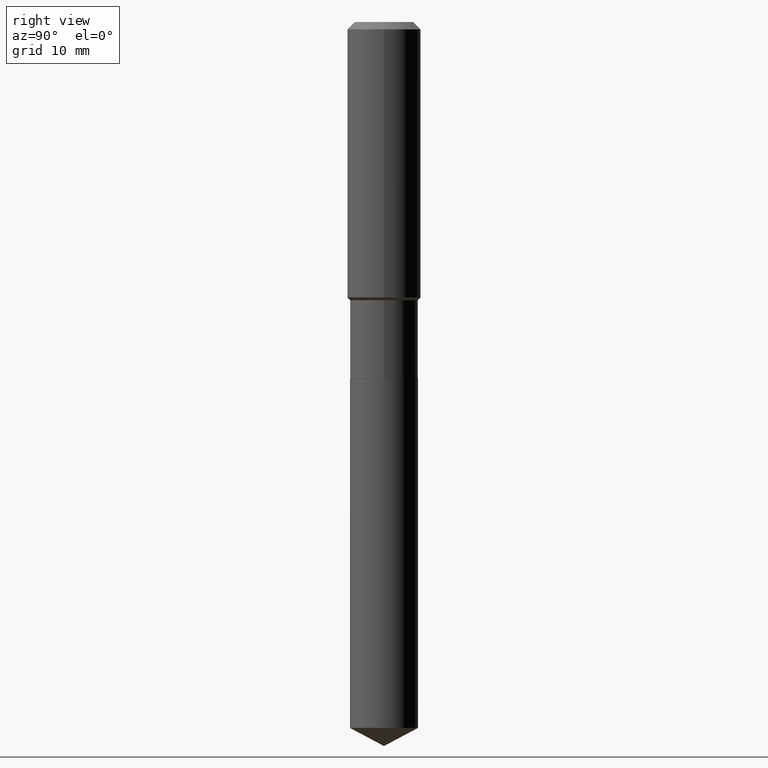
[diagram: clean part render]
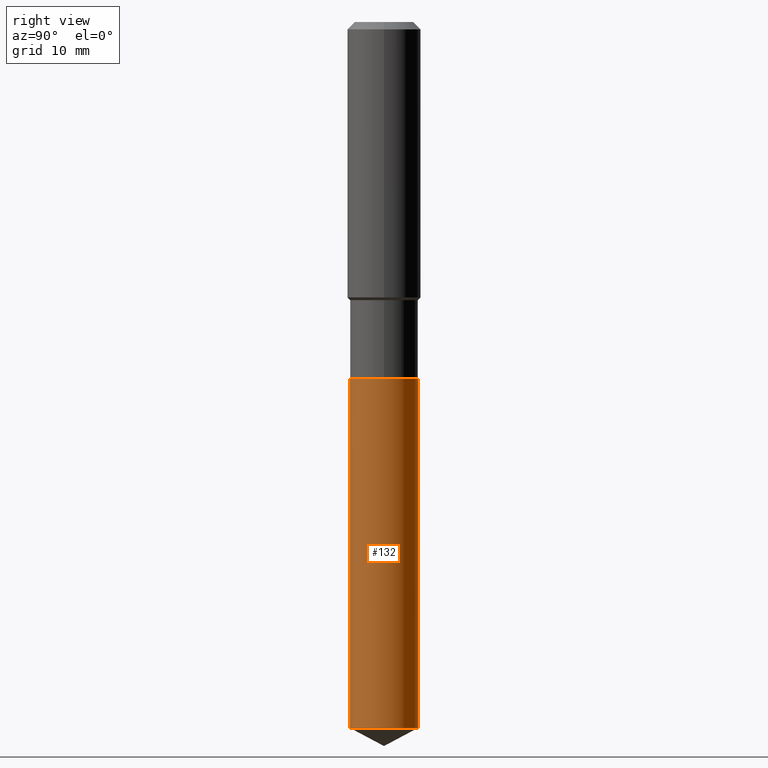
[diagram: same view with one face highlighted and labeled with its STEP entity id]
A machine part, right view. The second image highlights one B-rep face of the part: STEP entity #132.
In plain terms, the highlighted cylindrical surface (edge-blend (fillet) strip) has radius 5.5499 mm, axis along (-0, 0, 1).
Its self-contained STEP definition (entity closure, byte-faithful):
#2 = AXIS2_PLACEMENT_3D ( 'NONE', #12, #395, #17 ) ;
#12 = CARTESIAN_POINT ( 'NONE',  ( 5.593765347267879611E-29, -7.986414414469808493E-15, -2.287399999999998990 ) ) ;
#13 = EDGE_CURVE ( 'NONE', #88, #222, #233, .T. ) ;
#17 = DIRECTION ( 'NONE',  ( -6.982962677686265922E-15, -1.000000000000000000, 3.750821043932626512E-15 ) ) ;
#18 = EDGE_CURVE ( 'NONE', #366, #88, #149, .T. ) ;
#37 = VECTOR ( 'NONE', #126, 39.37007874015748143 ) ;
#53 = CARTESIAN_POINT ( 'NONE',  ( -1.525777345074393133E-15, -0.2185000000000079934, -2.287399999999998546 ) ) ;
#88 = VERTEX_POINT ( 'NONE', #192 ) ;
#90 = DIRECTION ( 'NONE',  ( -2.445496421162079859E-29, 3.491441792624415852E-15, 1.000000000000000000 ) ) ;
#95 = CARTESIAN_POINT ( 'NONE',  ( -1.525777345074393133E-15, -0.2185000000000079934, -2.287399999999998546 ) ) ;
#98 = DIRECTION ( 'NONE',  ( -6.982962677686265922E-15, -1.000000000000000000, 3.750821043932626512E-15 ) ) ;
#117 = ORIENTED_EDGE ( 'NONE', *, *, #177, .F. ) ;
#126 = DIRECTION ( 'NONE',  ( -2.445496421162079579E-29, 3.491441792624415852E-15, 1.000000000000000000 ) ) ;
#128 = FACE_OUTER_BOUND ( 'NONE', #329, .T. ) ;
#132 = ADVANCED_FACE ( 'NONE', ( #128 ), #434, .T. ) ;
#137 = CARTESIAN_POINT ( 'NONE',  ( -1.525777345074338504E-15, -0.2185000000000158482, -4.529521489181966842 ) ) ;
#149 = CIRCLE ( 'NONE', #206, 0.2184999999999999998 ) ;
#177 = EDGE_CURVE ( 'NONE', #262, #222, #427, .T. ) ;
#182 = ORIENTED_EDGE ( 'NONE', *, *, #250, .F. ) ;
#192 = CARTESIAN_POINT ( 'NONE',  ( 1.552535877635929740E-15, 0.2184999999999842346, -4.529521489181967731 ) ) ;
#197 = DIRECTION ( 'NONE',  ( -2.445496421162079859E-29, 3.491441792624415852E-15, 1.000000000000000000 ) ) ;
#206 = AXIS2_PLACEMENT_3D ( 'NONE', #268, #197, #348 ) ;
#222 = VERTEX_POINT ( 'NONE', #476 ) ;
#233 = LINE ( 'NONE', #239, #288 ) ;
#239 = CARTESIAN_POINT ( 'NONE',  ( 1.552535877635874716E-15, 0.2184999999999920062, -2.287399999999999878 ) ) ;
#240 = AXIS2_PLACEMENT_3D ( 'NONE', #289, #90, #98 ) ;
#250 = EDGE_CURVE ( 'NONE', #366, #262, #471, .T. ) ;
#262 = VERTEX_POINT ( 'NONE', #95 ) ;
#268 = CARTESIAN_POINT ( 'NONE',  ( 1.107686542487297643E-28, -1.581465108594102164E-14, -4.529521489181966842 ) ) ;
#277 = DIRECTION ( 'NONE',  ( -2.445496421162079579E-29, 3.491441792624415852E-15, 1.000000000000000000 ) ) ;
#288 = VECTOR ( 'NONE', #277, 39.37007874015748143 ) ;
#289 = CARTESIAN_POINT ( 'NONE',  ( 5.593765347267879611E-29, -7.986414414469808493E-15, -2.287399999999998990 ) ) ;
#329 = EDGE_LOOP ( 'NONE', ( #415, #440, #117, #182 ) ) ;
#348 = DIRECTION ( 'NONE',  ( -6.982962677686265922E-15, -1.000000000000000000, 2.500547362621751271E-15 ) ) ;
#366 = VERTEX_POINT ( 'NONE', #137 ) ;
#395 = DIRECTION ( 'NONE',  ( -2.445496421162079859E-29, 3.491441792624415852E-15, 1.000000000000000000 ) ) ;
#415 = ORIENTED_EDGE ( 'NONE', *, *, #18, .T. ) ;
#427 = CIRCLE ( 'NONE', #240, 0.2184999999999999998 ) ;
#434 = CYLINDRICAL_SURFACE ( 'NONE', #2, 0.2184999999999999998 ) ;
#440 = ORIENTED_EDGE ( 'NONE', *, *, #13, .T. ) ;
#471 = LINE ( 'NONE', #53, #37 ) ;
#476 = CARTESIAN_POINT ( 'NONE',  ( 1.552535877635929740E-15, 0.2184999999999920062, -2.287399999999999878 ) ) ;